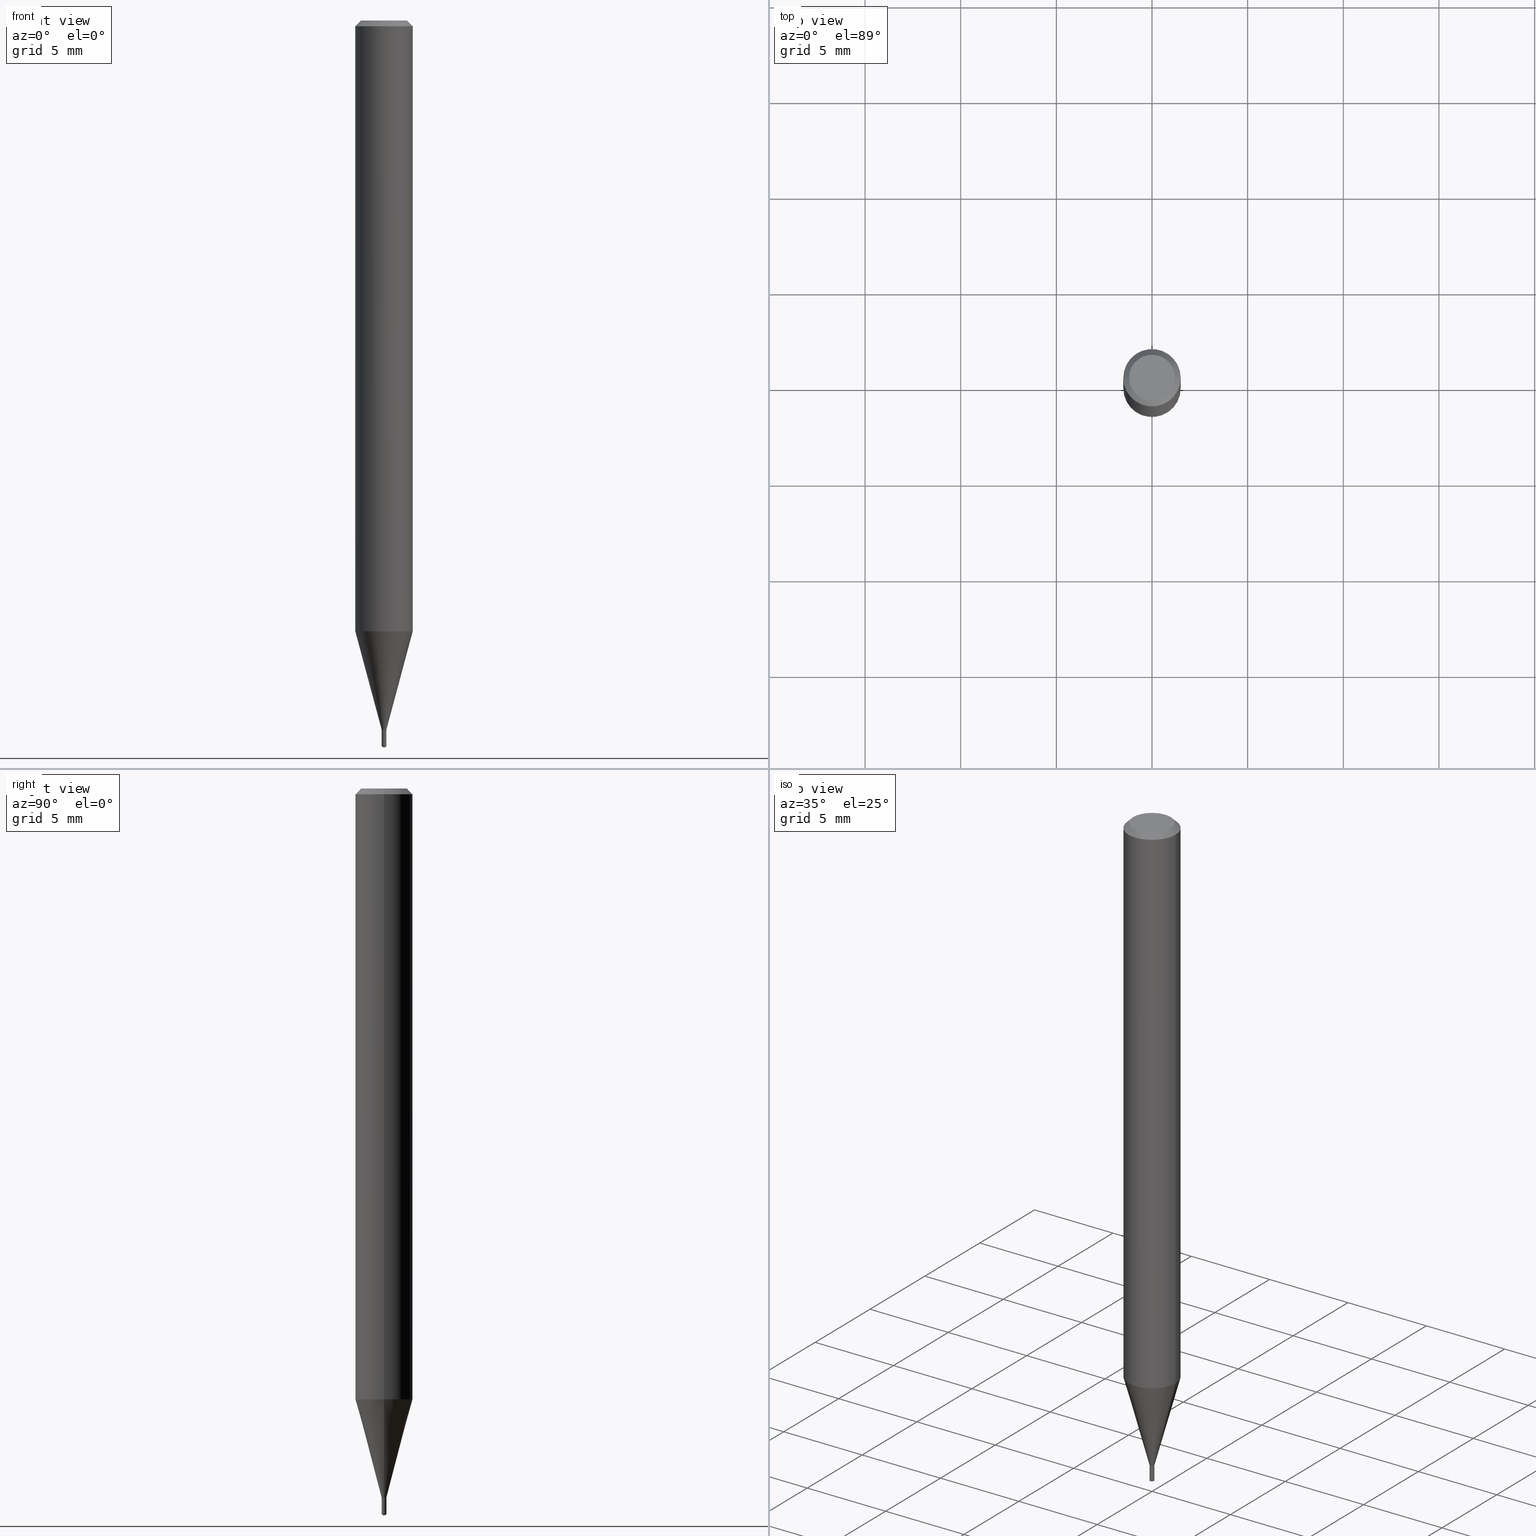
[diagram: canonical four-view strip — front | top / right | iso, engineering-drawing reading convention]
A machine part, canonical four-view strip (front | top / right | iso — engineering-drawing reading convention). The complete STEP part file that produces these views, byte-faithful:
ISO-10303-21;
HEADER;
FILE_DESCRIPTION (( 'STEP AP203' ),
    '1' );
FILE_NAME ('07041.STEP',
    '2024-04-23T19:22:58',
    ( '' ),
    ( '' ),
    'SwSTEP 2.0',
    'SolidWorks 2023',
    '' );
FILE_SCHEMA (( 'CONFIG_CONTROL_DESIGN' ));
ENDSEC;

DATA;
#1 = DIRECTION ( 'NONE',  ( 2.445468806185136597E-29, -3.491481338843145583E-15, -1.000000000000000000 ) ) ;
#2 = CONICAL_SURFACE ( 'NONE', #30, 84.42940631927247352, 1.134464013796307569 ) ;
#3 = LOCAL_TIME ( 15, 22, 58.00000000000000000, #110 ) ;
#4 = CARTESIAN_POINT ( 'NONE',  ( 3.568428081985351240E-29, -5.094769569639917175E-15, -1.459199999999999831 ) ) ;
#5 = APPROVAL ( #480, 'UNSPECIFIED' ) ;
#6 = DIRECTION ( 'NONE',  ( 6.982962677686265922E-15, 1.000000000000000000, -3.402305171297575552E-15 ) ) ;
#7 = ORIENTED_EDGE ( 'NONE', *, *, #74, .F. ) ;
#8 = CYLINDRICAL_SURFACE ( 'NONE', #70, 0.004899999999999998107 ) ;
#9 = ORIENTED_EDGE ( 'NONE', *, *, #350, .F. ) ;
#10 = CIRCLE ( 'NONE', #244, 0.004399999999999999398 ) ;
#11 = DIRECTION ( 'NONE',  ( -6.982962677686267499E-15, -1.000000000000000000, 3.416856291041986202E-15 ) ) ;
#12 = CYLINDRICAL_SURFACE ( 'NONE', #229, 0.004899999999999998107 ) ;
#13 = DIRECTION ( 'NONE',  ( -2.507740191156118144E-29, 3.402305171297575158E-15, 1.000000000000000000 ) ) ;
#14 = EDGE_CURVE ( 'NONE', #232, #302, #92, .T. ) ;
#15 = DIRECTION ( 'NONE',  ( -2.445468806185136597E-29, 3.491481338843145583E-15, 1.000000000000000000 ) ) ;
#16 = AXIS2_PLACEMENT_3D ( 'NONE', #283, #13, #392 ) ;
#17 = CARTESIAN_POINT ( 'NONE',  ( 3.481659405228143594E-17, 0.004899999999994899755, -1.460699999999999887 ) ) ;
#18 = EDGE_LOOP ( 'NONE', ( #446, #120, #429, #259 ) ) ;
#19 = CARTESIAN_POINT ( 'NONE',  ( 3.074221942927981307E-29, -4.389174181264353445E-15, -1.257109448770144855 ) ) ;
#20 = VERTEX_POINT ( 'NONE', #198 ) ;
#21 = EDGE_CURVE ( 'NONE', #394, #481, #343, .T. ) ;
#22 = AXIS2_PLACEMENT_3D ( 'NONE', #79, #231, #41 ) ;
#23 = CARTESIAN_POINT ( 'NONE',  ( 2.888098660104664642E-31, -4.123439461173780879E-17, -0.01181000000000007565 ) ) ;
#24 = PERSON_AND_ORGANIZATION_ROLE ( 'classification_officer' ) ;
#25 = CC_DESIGN_PERSON_AND_ORGANIZATION_ASSIGNMENT ( #403, #360, ( #312 ) ) ;
#26 = DATE_AND_TIME ( #224, #336 ) ;
#27 = ADVANCED_FACE ( 'NONE', ( #214 ), #247, .T. ) ;
#28 = ORIENTED_EDGE ( 'NONE', *, *, #410, .F. ) ;
#29 = COORDINATED_UNIVERSAL_TIME_OFFSET ( 5, 0, .BEHIND. ) ;
#30 = AXIS2_PLACEMENT_3D ( 'NONE', #62, #34, #331 ) ;
#31 = VECTOR ( 'NONE', #387, 39.37007874015748143 ) ;
#32 = EDGE_LOOP ( 'NONE', ( #215, #68 ) ) ;
#33 = APPLICATION_PROTOCOL_DEFINITION ( 'international standard', 'config_control_design', 1994, #388 ) ;
#34 = DIRECTION ( 'NONE',  ( -2.507740191156118144E-29, 3.402305171297575158E-15, 1.000000000000000000 ) ) ;
#35 = DATE_TIME_ROLE ( 'creation_date' ) ;
#36 = CARTESIAN_POINT ( 'NONE',  ( -3.421651712062611296E-17, -0.004900000000005209216, -1.493815092475040407 ) ) ;
#37 = CARTESIAN_POINT ( 'NONE',  ( 3.572096285194628524E-29, -5.100006791648181685E-15, -1.460699999999999887 ) ) ;
#38 = VECTOR ( 'NONE', #389, 39.37007874015748143 ) ;
#39 = CARTESIAN_POINT ( 'NONE',  ( 0.000000000000000000, 0.000000000000000000, 0.000000000000000000 ) ) ;
#40 = ORIENTED_EDGE ( 'NONE', *, *, #350, .T. ) ;
#41 = DIRECTION ( 'NONE',  ( 1.000000000000000000, -6.982962677686196502E-15, 0.000000000000000000 ) ) ;
#42 = ORIENTED_EDGE ( 'NONE', *, *, #57, .T. ) ;
#43 = CC_DESIGN_PERSON_AND_ORGANIZATION_ASSIGNMENT ( #218, #151, ( #219 ) ) ;
#44 = FACE_OUTER_BOUND ( 'NONE', #217, .T. ) ;
#45 = AXIS2_PLACEMENT_3D ( 'NONE', #342, #239, #11 ) ;
#46 =( GEOMETRIC_REPRESENTATION_CONTEXT ( 3 ) GLOBAL_UNCERTAINTY_ASSIGNED_CONTEXT ( ( #250 ) ) GLOBAL_UNIT_ASSIGNED_CONTEXT ( ( #437, #100, #221 ) ) REPRESENTATION_CONTEXT ( 'NONE', 'WORKASPACE' ) );
#47 = CARTESIAN_POINT ( 'NONE',  ( 3.572096285194627963E-29, -5.100006791648181685E-15, -1.460699999999999443 ) ) ;
#48 = DIRECTION ( 'NONE',  ( -2.507740191156118144E-29, 3.402305171297575158E-15, 1.000000000000000000 ) ) ;
#49 = EDGE_CURVE ( 'NONE', #302, #184, #111, .T. ) ;
#50 = CARTESIAN_POINT ( 'NONE',  ( 2.888098660104664642E-31, -4.123439461173780879E-17, -0.01181000000000007565 ) ) ;
#51 = CARTESIAN_POINT ( 'NONE',  ( 3.572096285194627963E-29, -5.100006791648181685E-15, -1.460699999999999443 ) ) ;
#52 = CIRCLE ( 'NONE', #431, 0.004399999999999999398 ) ;
#53 = ORIENTED_EDGE ( 'NONE', *, *, #346, .T. ) ;
#54 = LINE ( 'NONE', #249, #31 ) ;
#55 = DIRECTION ( 'NONE',  ( -1.000000000000000000, 6.982962677686266711E-15, 0.000000000000000000 ) ) ;
#56 = VERTEX_POINT ( 'NONE', #152 ) ;
#57 = EDGE_CURVE ( 'NONE', #150, #184, #178, .T. ) ;
#58 = CARTESIAN_POINT ( 'NONE',  ( 0.004899999999999998107, -5.128986086760580222E-15, -1.459199999999999831 ) ) ;
#59 = DIRECTION ( 'NONE',  ( 0.7071067811868112507, -2.468850131085019257E-15, 0.7071067811862837837 ) ) ;
#60 = ORIENTED_EDGE ( 'NONE', *, *, #119, .F. ) ;
#61 = APPROVAL_PERSON_ORGANIZATION ( #69, #5, #326 ) ;
#62 = CARTESIAN_POINT ( 'NONE',  ( -9.506905849771238472E-28, 1.287285740973184145E-13, 37.87397874015748300 ) ) ;
#63 = EDGE_LOOP ( 'NONE', ( #182, #416, #314, #9 ) ) ;
#64 = CALENDAR_DATE ( 2024, 23, 4 ) ;
#65 = ADVANCED_FACE ( 'NONE', ( #73 ), #173, .F. ) ;
#66 = ORIENTED_EDGE ( 'NONE', *, *, #391, .F. ) ;
#67 = PRODUCT_RELATED_PRODUCT_CATEGORY ( 'detail', '', ( #252 ) ) ;
#68 = ORIENTED_EDGE ( 'NONE', *, *, #188, .F. ) ;
#69 = PERSON_AND_ORGANIZATION ( #87, #113 ) ;
#70 = AXIS2_PLACEMENT_3D ( 'NONE', #39, #199, #195 ) ;
#71 = VECTOR ( 'NONE', #233, 39.37007874015748143 ) ;
#72 = CALENDAR_DATE ( 2024, 23, 4 ) ;
#73 = FACE_OUTER_BOUND ( 'NONE', #148, .T. ) ;
#74 = EDGE_CURVE ( 'NONE', #162, #302, #371, .T. ) ;
#75 = DIRECTION ( 'NONE',  ( 0.2588190451025211836, 1.565188264969622559E-15, 0.9659258262890679791 ) ) ;
#76 = CARTESIAN_POINT ( 'NONE',  ( 3.572096285194628524E-29, -5.100006791648181685E-15, -1.460699999999999887 ) ) ;
#77 = ORIENTED_EDGE ( 'NONE', *, *, #194, .F. ) ;
#78 = AXIS2_PLACEMENT_3D ( 'NONE', #412, #356, #282 ) ;
#79 = CARTESIAN_POINT ( 'NONE',  ( 3.570873550791536843E-29, -5.098261050978760971E-15, -1.460199999999999942 ) ) ;
#80 = DIRECTION ( 'NONE',  ( 1.000000000000000000, -6.982962677686268288E-15, 0.000000000000000000 ) ) ;
#81 = FACE_OUTER_BOUND ( 'NONE', #63, .T. ) ;
#82 = ORIENTED_EDGE ( 'NONE', *, *, #57, .F. ) ;
#83 = FACE_OUTER_BOUND ( 'NONE', #421, .T. ) ;
#84 = VECTOR ( 'NONE', #316, 39.37007874015748854 ) ;
#85 = CONICAL_SURFACE ( 'NONE', #212, 0.004899999999999998107, 0.2617993877991499074 ) ;
#86 = CARTESIAN_POINT ( 'NONE',  ( -0.05905000000000017180, -3.969598695798013952E-15, -1.257109448770144855 ) ) ;
#87 = PERSON ( 'UNSPECIFIED', 'UNSPECIFIED', 'UNSPECIFIED', ('UNSPECIFIED'), ('UNSPECIFIED'), ('UNSPECIFIED') ) ;
#88 = DIRECTION ( 'NONE',  ( 1.000000000000000000, -6.982962677686267499E-15, 4.876176775795936353E-29 ) ) ;
#89 = ADVANCED_FACE ( 'NONE', ( #318 ), #450, .T. ) ;
#90 = FACE_OUTER_BOUND ( 'NONE', #308, .T. ) ;
#91 = ORIENTED_EDGE ( 'NONE', *, *, #153, .T. ) ;
#92 = CIRCLE ( 'NONE', #442, 0.05905000000000017180 ) ;
#93 = CIRCLE ( 'NONE', #443, 0.004899999999999998107 ) ;
#94 = CARTESIAN_POINT ( 'NONE',  ( 4.132873053354867254E-48, -5.900647395337818946E-34, -1.690012582823346072E-19 ) ) ;
#95 = ADVANCED_FACE ( 'NONE', ( #321 ), #452, .T. ) ;
#96 = ORIENTED_EDGE ( 'NONE', *, *, #346, .F. ) ;
#97 = LENGTH_MEASURE_WITH_UNIT ( LENGTH_MEASURE( 0.02539999999999999897 ), #355 );
#98 = LINE ( 'NONE', #413, #483 ) ;
#99 = EDGE_LOOP ( 'NONE', ( #138, #230, #82, #60 ) ) ;
#100 =( NAMED_UNIT ( * ) PLANE_ANGLE_UNIT ( ) SI_UNIT ( $, .RADIAN. ) );
#101 = DIRECTION ( 'NONE',  ( 1.000000000000000000, -6.982962677686289588E-15, 0.000000000000000000 ) ) ;
#102 = ORIENTED_EDGE ( 'NONE', *, *, #440, .F. ) ;
#103 = EDGE_CURVE ( 'NONE', #397, #162, #373, .T. ) ;
#104 = AXIS2_PLACEMENT_3D ( 'NONE', #94, #266, #267 ) ;
#105 = APPROVAL_PERSON_ORGANIZATION ( #488, #377, #332 ) ;
#106 = ORIENTED_EDGE ( 'NONE', *, *, #324, .F. ) ;
#107 = CALENDAR_DATE ( 2024, 23, 4 ) ;
#108 = ORIENTED_EDGE ( 'NONE', *, *, #268, .T. ) ;
#109 = DATE_AND_TIME ( #107, #401 ) ;
#110 = COORDINATED_UNIVERSAL_TIME_OFFSET ( 5, 0, .BEHIND. ) ;
#111 = LINE ( 'NONE', #438, #297 ) ;
#112 = VECTOR ( 'NONE', #303, 39.37007874015748143 ) ;
#113 = ORGANIZATION ( 'UNSPECIFIED', 'UNSPECIFIED', '' ) ;
#114 = ADVANCED_FACE ( 'NONE', ( #393 ), #366, .T. ) ;
#115 = LINE ( 'NONE', #369, #192 ) ;
#116 = LINE ( 'NONE', #158, #328 ) ;
#117 = EDGE_LOOP ( 'NONE', ( #272, #322, #96, #404 ) ) ;
#118 = LINE ( 'NONE', #309, #112 ) ;
#119 = EDGE_CURVE ( 'NONE', #232, #150, #115, .T. ) ;
#120 = ORIENTED_EDGE ( 'NONE', *, *, #386, .T. ) ;
#121 = AXIS2_PLACEMENT_3D ( 'NONE', #37, #301, #6 ) ;
#122 = DIRECTION ( 'NONE',  ( -2.507740191156118144E-29, 3.402305171297575158E-15, 1.000000000000000000 ) ) ;
#123 = VERTEX_POINT ( 'NONE', #36 ) ;
#124 = CARTESIAN_POINT ( 'NONE',  ( 3.751830099988668308E-29, -5.090188766778301737E-15, -1.496099999999999985 ) ) ;
#125 = DIRECTION ( 'NONE',  ( -6.982962677686265922E-15, -1.000000000000000000, 0.000000000000000000 ) ) ;
#126 = ADVANCED_FACE ( 'NONE', ( #333 ), #237, .T. ) ;
#127 = CC_DESIGN_APPROVAL ( #5, ( #312 ) ) ;
#128 = CARTESIAN_POINT ( 'NONE',  ( 0.04724000000000000421, -3.852183633974369345E-16, -3.380025165621689721E-19 ) ) ;
#129 = LINE ( 'NONE', #246, #136 ) ;
#130 = CARTESIAN_POINT ( 'NONE',  ( -0.004399999999999999398, -5.068742911274737565E-15, -1.460699999999999443 ) ) ;
#131 = EDGE_CURVE ( 'NONE', #302, #232, #243, .T. ) ;
#132 = DIRECTION ( 'NONE',  ( 1.000000000000000000, -6.982962677686266711E-15, 0.000000000000000000 ) ) ;
#133 = ORIENTED_EDGE ( 'NONE', *, *, #275, .F. ) ;
#134 = AXIS2_PLACEMENT_3D ( 'NONE', #299, #432, #101 ) ;
#135 = DIRECTION ( 'NONE',  ( 1.000000000000000000, -6.982962677686266711E-15, 0.000000000000000000 ) ) ;
#136 = VECTOR ( 'NONE', #170, 39.37007874015748854 ) ;
#137 = DIRECTION ( 'NONE',  ( 1.000000000000000000, -6.982962677686196502E-15, 0.000000000000000000 ) ) ;
#138 = ORIENTED_EDGE ( 'NONE', *, *, #14, .T. ) ;
#139 = DIRECTION ( 'NONE',  ( 1.000000000000000000, -6.982962677686196502E-15, 0.000000000000000000 ) ) ;
#140 = CARTESIAN_POINT ( 'NONE',  ( -0.004899999999999998107, -5.061698716257093659E-15, -1.459199999999999831 ) ) ;
#141 = EDGE_CURVE ( 'NONE', #397, #232, #98, .T. ) ;
#142 = APPROVAL_DATE_TIME ( #26, #5 ) ;
#143 = VERTEX_POINT ( 'NONE', #477 ) ;
#144 = PERSON_AND_ORGANIZATION ( #87, #113 ) ;
#145 = MANIFOLD_SOLID_BREP ( 'Body-Move/Copy2[2]', #228 ) ;
#146 = AXIS2_PLACEMENT_3D ( 'NONE', #372, #353, #208 ) ;
#147 = CC_DESIGN_APPROVAL ( #223, ( #169 ) ) ;
#148 = EDGE_LOOP ( 'NONE', ( #354, #367 ) ) ;
#149 = PERSON_AND_ORGANIZATION ( #87, #113 ) ;
#150 = VERTEX_POINT ( 'NONE', #396 ) ;
#151 = PERSON_AND_ORGANIZATION_ROLE ( 'creator' ) ;
#152 = CARTESIAN_POINT ( 'NONE',  ( -0.004899999999999998107, -5.061698716257093659E-15, -1.460199999999999942 ) ) ;
#153 = EDGE_CURVE ( 'NONE', #319, #143, #179, .T. ) ;
#154 = DIRECTION ( 'NONE',  ( -6.982962677686265922E-15, -1.000000000000000000, 0.000000000000000000 ) ) ;
#155 = CIRCLE ( 'NONE', #211, 0.004899999999999996372 ) ;
#156 = CIRCLE ( 'NONE', #368, 0.004899999999999998107 ) ;
#157 = CC_DESIGN_PERSON_AND_ORGANIZATION_ASSIGNMENT ( #144, #24, ( #169 ) ) ;
#158 = CARTESIAN_POINT ( 'NONE',  ( 3.753425320352740222E-29, -5.090188766778301737E-15, -1.496099999999999985 ) ) ;
#159 = FACE_OUTER_BOUND ( 'NONE', #117, .T. ) ;
#160 = ORIENTED_EDGE ( 'NONE', *, *, #440, .T. ) ;
#161 = DIRECTION ( 'NONE',  ( -2.445468806185136597E-29, 3.491481338843145583E-15, 1.000000000000000000 ) ) ;
#162 = VERTEX_POINT ( 'NONE', #140 ) ;
#163 = AXIS2_PLACEMENT_3D ( 'NONE', #190, #288, #154 ) ;
#164 = AXIS2_PLACEMENT_3D ( 'NONE', #385, #349, #88 ) ;
#165 = DIRECTION ( 'NONE',  ( 6.439704144417003532E-15, 0.9063077870366484934, 0.4226182617407022724 ) ) ;
#166 = ADVANCED_BREP_SHAPE_REPRESENTATION ( '07041', ( #467, #145, #222 ), #46 ) ;
#167 = DIRECTION ( 'NONE',  ( -6.982962677686265922E-15, -1.000000000000000000, 0.000000000000000000 ) ) ;
#168 = AXIS2_PLACEMENT_3D ( 'NONE', #19, #176, #435 ) ;
#169 = SECURITY_CLASSIFICATION ( '', '', #365 ) ;
#170 = DIRECTION ( 'NONE',  ( -6.328713451373348079E-15, -0.9063077870366456068, 0.4226182617407084896 ) ) ;
#171 = ORIENTED_EDGE ( 'NONE', *, *, #428, .F. ) ;
#172 = FACE_OUTER_BOUND ( 'NONE', #32, .T. ) ;
#173 = PLANE ( 'NONE',  #104 ) ;
#174 = EDGE_LOOP ( 'NONE', ( #262, #359, #402, #439 ) ) ;
#175 = CARTESIAN_POINT ( 'NONE',  ( 6.690138410991351740E-28, 8.559113785256521776E-14, -1.460699999999999443 ) ) ;
#176 = DIRECTION ( 'NONE',  ( -2.445468806185136597E-29, 3.491481338843145583E-15, 1.000000000000000000 ) ) ;
#177 = ORIENTED_EDGE ( 'NONE', *, *, #188, .T. ) ;
#178 = CIRCLE ( 'NONE', #256, 0.05904999999999999832 ) ;
#179 = LINE ( 'NONE', #226, #306 ) ;
#180 = DATE_AND_TIME ( #72, #3 ) ;
#181 = ADVANCED_FACE ( 'NONE', ( #399 ), #2, .T. ) ;
#182 = ORIENTED_EDGE ( 'NONE', *, *, #268, .F. ) ;
#183 = CARTESIAN_POINT ( 'NONE',  ( 0.000000000000000000, 0.000000000000000000, 0.000000000000000000 ) ) ;
#184 = VERTEX_POINT ( 'NONE', #489 ) ;
#185 = APPROVAL_STATUS ( 'not_yet_approved' ) ;
#186 = ORIENTED_EDGE ( 'NONE', *, *, #213, .F. ) ;
#187 = PERSON_AND_ORGANIZATION ( #87, #113 ) ;
#188 = EDGE_CURVE ( 'NONE', #479, #319, #52, .T. ) ;
#189 = DIRECTION ( 'NONE',  ( -2.445468806185136597E-29, 3.491481338843145583E-15, 1.000000000000000000 ) ) ;
#190 = CARTESIAN_POINT ( 'NONE',  ( 3.572096285194628524E-29, -5.100006791648181685E-15, -1.460699999999999887 ) ) ;
#191 = FACE_OUTER_BOUND ( 'NONE', #234, .T. ) ;
#192 = VECTOR ( 'NONE', #255, 39.37007874015748143 ) ;
#193 = CC_DESIGN_SECURITY_CLASSIFICATION ( #169, ( #312 ) ) ;
#194 = EDGE_CURVE ( 'NONE', #341, #286, #116, .T. ) ;
#195 = DIRECTION ( 'NONE',  ( 1.000000000000000000, -6.982962677686265922E-15, 4.876176775795936353E-29 ) ) ;
#196 = ORIENTED_EDGE ( 'NONE', *, *, #275, .T. ) ;
#197 = CYLINDRICAL_SURFACE ( 'NONE', #473, 0.004899999999999998107 ) ;
#198 = CARTESIAN_POINT ( 'NONE',  ( -0.04724000000000000421, 3.504923541997677355E-16, -3.380025165670481712E-19 ) ) ;
#199 = DIRECTION ( 'NONE',  ( -2.445468806185136597E-29, 3.491481338843145583E-15, 1.000000000000000000 ) ) ;
#200 = DIRECTION ( 'NONE',  ( 1.000000000000000000, -6.982962677686196502E-15, 0.000000000000000000 ) ) ;
#201 = ADVANCED_FACE ( 'NONE', ( #83 ), #463, .F. ) ;
#202 = CARTESIAN_POINT ( 'NONE',  ( 3.568428081985351240E-29, -5.094769569639917175E-15, -1.459199999999999831 ) ) ;
#203 = CC_DESIGN_PERSON_AND_ORGANIZATION_ASSIGNMENT ( #482, #398, ( #312 ) ) ;
#204 = DIRECTION ( 'NONE',  ( -2.445468806185136597E-29, 3.491481338843145583E-15, 1.000000000000000000 ) ) ;
#205 = AXIS2_PLACEMENT_3D ( 'NONE', #23, #1, #55 ) ;
#206 = DIRECTION ( 'NONE',  ( -2.438088387897960049E-29, 3.491481338843145188E-15, 1.000000000000000000 ) ) ;
#207 = DIRECTION ( 'NONE',  ( -2.445468806185136597E-29, 3.491481338843145583E-15, 1.000000000000000000 ) ) ;
#208 = DIRECTION ( 'NONE',  ( -6.982962677686265922E-15, -1.000000000000000000, 0.000000000000000000 ) ) ;
#209 = EDGE_LOOP ( 'NONE', ( #253, #177, #91, #485 ) ) ;
#210 = CARTESIAN_POINT ( 'NONE',  ( -0.004899999999999998107, -5.059952975587672945E-15, -1.459199999999999831 ) ) ;
#211 = AXIS2_PLACEMENT_3D ( 'NONE', #338, #456, #167 ) ;
#212 = AXIS2_PLACEMENT_3D ( 'NONE', #202, #15, #430 ) ;
#213 = EDGE_CURVE ( 'NONE', #20, #433, #409, .T. ) ;
#214 = FACE_OUTER_BOUND ( 'NONE', #99, .T. ) ;
#215 = ORIENTED_EDGE ( 'NONE', *, *, #468, .F. ) ;
#216 = DIRECTION ( 'NONE',  ( 0.000000000000000000, 0.000000000000000000, 1.000000000000000000 ) ) ;
#217 = EDGE_LOOP ( 'NONE', ( #53, #108, #248, #106 ) ) ;
#218 = PERSON_AND_ORGANIZATION ( #87, #113 ) ;
#219 = PRODUCT_DEFINITION ( 'UNKNOWN', '', #312, #466 ) ;
#220 = ORIENTED_EDGE ( 'NONE', *, *, #131, .F. ) ;
#221 =( NAMED_UNIT ( * ) SI_UNIT ( $, .STERADIAN. ) SOLID_ANGLE_UNIT ( ) );
#222 = AXIS2_PLACEMENT_3D ( 'NONE', #183, #216, #263 ) ;
#223 = APPROVAL ( #185, 'UNSPECIFIED' ) ;
#224 = CALENDAR_DATE ( 2024, 23, 4 ) ;
#225 = CARTESIAN_POINT ( 'NONE',  ( 3.568428081985351240E-29, -5.094769569639917175E-15, -1.459199999999999831 ) ) ;
#226 = CARTESIAN_POINT ( 'NONE',  ( 0.004399999999999999398, -5.130731827430000937E-15, -1.460699999999999443 ) ) ;
#227 = DIRECTION ( 'NONE',  ( 1.000000000000000000, -6.982962677686266711E-15, 4.876185090822587894E-29 ) ) ;
#228 = CLOSED_SHELL ( 'NONE', ( #261, #89, #27, #415, #235, #241, #370, #361, #126, #65, #478, #114 ) ) ;
#229 = AXIS2_PLACEMENT_3D ( 'NONE', #76, #122, #125 ) ;
#230 = ORIENTED_EDGE ( 'NONE', *, *, #49, .T. ) ;
#231 = DIRECTION ( 'NONE',  ( -2.445468806185136597E-29, 3.491481338843145583E-15, 1.000000000000000000 ) ) ;
#232 = VERTEX_POINT ( 'NONE', #378 ) ;
#233 = DIRECTION ( 'NONE',  ( -0.7071067811865452413, 2.468850131082233000E-15, -0.7071067811865497932 ) ) ;
#234 = EDGE_LOOP ( 'NONE', ( #196, #475, #28, #171 ) ) ;
#235 = ADVANCED_FACE ( 'NONE', ( #44 ), #8, .T. ) ;
#236 = CARTESIAN_POINT ( 'NONE',  ( 3.570873550791536843E-29, -5.098261050978760971E-15, -1.460199999999999942 ) ) ;
#237 = CONICAL_SURFACE ( 'NONE', #205, 0.05904999999999999832, 0.7853981633974450594 ) ;
#238 = AXIS2_PLACEMENT_3D ( 'NONE', #347, #311, #139 ) ;
#239 = DIRECTION ( 'NONE',  ( -2.507740191156118144E-29, 3.402305171297575158E-15, 1.000000000000000000 ) ) ;
#240 = CYLINDRICAL_SURFACE ( 'NONE', #164, 0.05905000000000008159 ) ;
#241 = ADVANCED_FACE ( 'NONE', ( #81 ), #197, .T. ) ;
#242 = CARTESIAN_POINT ( 'NONE',  ( 3.481659405228061010E-17, 0.004899999999994898887, -1.460699999999999887 ) ) ;
#243 = CIRCLE ( 'NONE', #168, 0.05905000000000017180 ) ;
#244 = AXIS2_PLACEMENT_3D ( 'NONE', #51, #207, #464 ) ;
#245 = ORIENTED_EDGE ( 'NONE', *, *, #49, .F. ) ;
#246 = CARTESIAN_POINT ( 'NONE',  ( 3.569910475934442376E-29, -5.350708022645931072E-15, -1.496099999999999985 ) ) ;
#247 = CYLINDRICAL_SURFACE ( 'NONE', #348, 0.05905000000000008159 ) ;
#248 = ORIENTED_EDGE ( 'NONE', *, *, #103, .F. ) ;
#249 = CARTESIAN_POINT ( 'NONE',  ( -3.421651712062696961E-17, -0.004900000000005098194, -1.460699999999999887 ) ) ;
#250 = UNCERTAINTY_MEASURE_WITH_UNIT (LENGTH_MEASURE( 1.000000000000000082E-05 ), #437, 'distance_accuracy_value', 'NONE');
#251 = CARTESIAN_POINT ( 'NONE',  ( 2.888098660104664642E-31, -4.123439461173780879E-17, -0.01181000000000007565 ) ) ;
#252 = PRODUCT ( '07041', '07041', '', ( #362 ) ) ;
#253 = ORIENTED_EDGE ( 'NONE', *, *, #486, .F. ) ;
#254 = ADVANCED_FACE ( 'NONE', ( #423 ), #264, .T. ) ;
#255 = DIRECTION ( 'NONE',  ( -2.445468806185136877E-29, 3.491481338843145188E-15, 1.000000000000000000 ) ) ;
#256 = AXIS2_PLACEMENT_3D ( 'NONE', #251, #284, #132 ) ;
#257 = COORDINATED_UNIVERSAL_TIME_OFFSET ( 5, 0, .BEHIND. ) ;
#258 = CIRCLE ( 'NONE', #411, 0.05904999999999999832 ) ;
#259 = ORIENTED_EDGE ( 'NONE', *, *, #21, .F. ) ;
#260 = DATE_TIME_ROLE ( 'classification_date' ) ;
#261 = ADVANCED_FACE ( 'NONE', ( #159 ), #383, .T. ) ;
#262 = ORIENTED_EDGE ( 'NONE', *, *, #103, .T. ) ;
#263 = DIRECTION ( 'NONE',  ( 1.000000000000000000, 0.000000000000000000, 0.000000000000000000 ) ) ;
#264 = CONICAL_SURFACE ( 'NONE', #45, 84.42940631927247352, 1.134464013796307569 ) ;
#265 = AXIS2_PLACEMENT_3D ( 'NONE', #469, #48, #320 ) ;
#266 = DIRECTION ( 'NONE',  ( 2.438088387897960049E-29, -3.491481338843145188E-15, -1.000000000000000000 ) ) ;
#267 = DIRECTION ( 'NONE',  ( -1.000000000000000000, 6.982962677686265922E-15, -4.876176775795935793E-29 ) ) ;
#268 = EDGE_CURVE ( 'NONE', #56, #162, #118, .T. ) ;
#269 = DIRECTION ( 'NONE',  ( 1.000000000000000000, -6.982962677686265922E-15, 4.876176775795936353E-29 ) ) ;
#270 = ORIENTED_EDGE ( 'NONE', *, *, #21, .T. ) ;
#271 = DIRECTION ( 'NONE',  ( 0.7071067811865452413, -7.319954787623248157E-15, -0.7071067811865497932 ) ) ;
#272 = ORIENTED_EDGE ( 'NONE', *, *, #468, .T. ) ;
#273 = DIRECTION ( 'NONE',  ( -2.445468806185136597E-29, 3.491481338843145583E-15, 1.000000000000000000 ) ) ;
#274 = ORIENTED_EDGE ( 'NONE', *, *, #410, .T. ) ;
#275 = EDGE_CURVE ( 'NONE', #123, #286, #155, .T. ) ;
#276 = CARTESIAN_POINT ( 'NONE',  ( 3.572096285194627963E-29, -5.100006791648181685E-15, -1.460699999999999443 ) ) ;
#277 = DIRECTION ( 'NONE',  ( -2.445468806185136597E-29, 3.491481338843145583E-15, 1.000000000000000000 ) ) ;
#278 = LOCAL_TIME ( 15, 22, 58.00000000000000000, #257 ) ;
#279 = DIRECTION ( 'NONE',  ( 1.000000000000000000, -6.982962677686266711E-15, 4.876185090822587894E-29 ) ) ;
#280 = LINE ( 'NONE', #242, #38 ) ;
#281 = DIRECTION ( 'NONE',  ( -0.7071067811868112507, 7.493145998871307104E-15, 0.7071067811862837837 ) ) ;
#282 = DIRECTION ( 'NONE',  ( -1.000000000000000000, 6.982962677686266711E-15, 0.000000000000000000 ) ) ;
#283 = CARTESIAN_POINT ( 'NONE',  ( 3.572096285194628524E-29, -5.100006791648181685E-15, -1.460699999999999887 ) ) ;
#284 = DIRECTION ( 'NONE',  ( -2.445468806185136597E-29, 3.491481338843145583E-15, 1.000000000000000000 ) ) ;
#285 = EDGE_CURVE ( 'NONE', #433, #150, #305, .T. ) ;
#286 = VERTEX_POINT ( 'NONE', #418 ) ;
#287 = DIRECTION ( 'NONE',  ( -2.445468806185136597E-29, 3.491481338843145583E-15, 1.000000000000000000 ) ) ;
#288 = DIRECTION ( 'NONE',  ( -2.507740191156118144E-29, 3.402305171297575158E-15, 1.000000000000000000 ) ) ;
#289 = APPLICATION_PROTOCOL_DEFINITION ( 'international standard', 'config_control_design', 1994, #406 ) ;
#290 = CLOSED_SHELL ( 'NONE', ( #292, #181, #254, #95, #201 ) ) ;
#291 = APPROVAL_STATUS ( 'not_yet_approved' ) ;
#292 = ADVANCED_FACE ( 'NONE', ( #191 ), #12, .T. ) ;
#293 = ORIENTED_EDGE ( 'NONE', *, *, #334, .T. ) ;
#294 = APPROVAL_ROLE ( '' ) ;
#295 = CARTESIAN_POINT ( 'NONE',  ( 0.000000000000000000, 0.000000000000000000, 0.000000000000000000 ) ) ;
#296 = SHAPE_DEFINITION_REPRESENTATION ( #352, #166 ) ;
#297 = VECTOR ( 'NONE', #474, 39.37007874015748143 ) ;
#298 = CIRCLE ( 'NONE', #16, 0.004899999999999999842 ) ;
#299 = CARTESIAN_POINT ( 'NONE',  ( 3.572096285194627963E-29, -5.100006791648181685E-15, -1.460699999999999443 ) ) ;
#300 = EDGE_CURVE ( 'NONE', #56, #143, #400, .T. ) ;
#301 = DIRECTION ( 'NONE',  ( 2.507740191156117584E-29, -3.402305171297575552E-15, -1.000000000000000000 ) ) ;
#302 = VERTEX_POINT ( 'NONE', #86 ) ;
#303 = DIRECTION ( 'NONE',  ( -2.445468806185136877E-29, 3.491481338843145188E-15, 1.000000000000000000 ) ) ;
#304 = EDGE_LOOP ( 'NONE', ( #66, #455, #42, #472 ) ) ;
#305 = LINE ( 'NONE', #420, #335 ) ;
#306 = VECTOR ( 'NONE', #59, 39.37007874015748143 ) ;
#307 = CC_DESIGN_PERSON_AND_ORGANIZATION_ASSIGNMENT ( #187, #330, ( #252 ) ) ;
#308 = EDGE_LOOP ( 'NONE', ( #7, #40, #436, #220 ) ) ;
#309 = CARTESIAN_POINT ( 'NONE',  ( -0.004899999999999998107, 3.481659405224489566E-17, -2.410278194224902830E-31 ) ) ;
#310 = DIRECTION ( 'NONE',  ( 1.000000000000000000, -6.982962677686289588E-15, 0.000000000000000000 ) ) ;
#311 = DIRECTION ( 'NONE',  ( -2.445468806185136597E-29, 3.491481338843145583E-15, 1.000000000000000000 ) ) ;
#312 = PRODUCT_DEFINITION_FORMATION_WITH_SPECIFIED_SOURCE ( 'ANY', '', #252, .NOT_KNOWN. ) ;
#313 = CARTESIAN_POINT ( 'NONE',  ( 8.265746106709734507E-48, -1.180129479067563789E-33, -3.380025165646692144E-19 ) ) ;
#314 = ORIENTED_EDGE ( 'NONE', *, *, #324, .T. ) ;
#315 = PLANE ( 'NONE',  #358 ) ;
#316 = DIRECTION ( 'NONE',  ( -0.2588190451025211836, 5.211531920934547886E-15, 0.9659258262890679791 ) ) ;
#317 = LINE ( 'NONE', #130, #465 ) ;
#318 = FACE_OUTER_BOUND ( 'NONE', #304, .T. ) ;
#319 = VERTEX_POINT ( 'NONE', #461 ) ;
#320 = DIRECTION ( 'NONE',  ( -6.982962677686265922E-15, -1.000000000000000000, 0.000000000000000000 ) ) ;
#321 = FACE_OUTER_BOUND ( 'NONE', #18, .T. ) ;
#322 = ORIENTED_EDGE ( 'NONE', *, *, #486, .T. ) ;
#323 = DATE_AND_TIME ( #408, #278 ) ;
#324 = EDGE_CURVE ( 'NONE', #143, #397, #422, .T. ) ;
#325 = ORIENTED_EDGE ( 'NONE', *, *, #386, .F. ) ;
#326 = APPROVAL_ROLE ( '' ) ;
#327 = EDGE_LOOP ( 'NONE', ( #102, #339, #133 ) ) ;
#328 = VECTOR ( 'NONE', #165, 39.37007874015748854 ) ;
#329 = ORIENTED_EDGE ( 'NONE', *, *, #131, .T. ) ;
#330 = PERSON_AND_ORGANIZATION_ROLE ( 'design_owner' ) ;
#331 = DIRECTION ( 'NONE',  ( -6.982962677686267499E-15, -1.000000000000000000, 3.416856291041986202E-15 ) ) ;
#332 = APPROVAL_ROLE ( '' ) ;
#333 = FACE_OUTER_BOUND ( 'NONE', #376, .T. ) ;
#334 = EDGE_CURVE ( 'NONE', #20, #184, #337, .T. ) ;
#335 = VECTOR ( 'NONE', #271, 39.37007874015748143 ) ;
#336 = LOCAL_TIME ( 15, 22, 58.00000000000000000, #444 ) ;
#337 = LINE ( 'NONE', #345, #71 ) ;
#338 = CARTESIAN_POINT ( 'NONE',  ( 3.655140333528139392E-29, -5.212674442024010742E-15, -1.493815092475040407 ) ) ;
#339 = ORIENTED_EDGE ( 'NONE', *, *, #194, .T. ) ;
#340 = CARTESIAN_POINT ( 'NONE',  ( 0.004899999999999998107, -3.421651712066269022E-17, 2.389326620140007827E-31 ) ) ;
#341 = VERTEX_POINT ( 'NONE', #124 ) ;
#342 = CARTESIAN_POINT ( 'NONE',  ( -9.506905849771238472E-28, 1.287285740973184145E-13, 37.87397874015748300 ) ) ;
#343 = CIRCLE ( 'NONE', #163, 0.004899999999999999842 ) ;
#344 = CONICAL_SURFACE ( 'NONE', #238, 0.004899999999999998107, 0.2617993877991499074 ) ;
#345 = CARTESIAN_POINT ( 'NONE',  ( -0.05904999999999999832, 3.711095515056362547E-16, -0.01181000000000007565 ) ) ;
#346 = EDGE_CURVE ( 'NONE', #143, #56, #93, .T. ) ;
#347 = CARTESIAN_POINT ( 'NONE',  ( 3.568428081985351240E-29, -5.094769569639917175E-15, -1.459199999999999831 ) ) ;
#348 = AXIS2_PLACEMENT_3D ( 'NONE', #295, #449, #471 ) ;
#349 = DIRECTION ( 'NONE',  ( -2.445468806185136597E-29, 3.491481338843145583E-15, 1.000000000000000000 ) ) ;
#350 = EDGE_CURVE ( 'NONE', #162, #397, #156, .T. ) ;
#351 = CARTESIAN_POINT ( 'NONE',  ( -3.421651712062698194E-17, -0.004900000000005099061, -1.460699999999999887 ) ) ;
#352 = PRODUCT_DEFINITION_SHAPE ( 'NONE', 'NONE',  #219 ) ;
#353 = DIRECTION ( 'NONE',  ( -2.507740191156118144E-29, 3.402305171297575158E-15, 1.000000000000000000 ) ) ;
#354 = ORIENTED_EDGE ( 'NONE', *, *, #213, .T. ) ;
#355 =( LENGTH_UNIT ( ) NAMED_UNIT ( * ) SI_UNIT ( $, .METRE. ) );
#356 = DIRECTION ( 'NONE',  ( 2.445468806185136597E-29, -3.491481338843145583E-15, -1.000000000000000000 ) ) ;
#357 = AXIS2_PLACEMENT_3D ( 'NONE', #47, #161, #310 ) ;
#358 = AXIS2_PLACEMENT_3D ( 'NONE', #175, #206, #470 ) ;
#359 = ORIENTED_EDGE ( 'NONE', *, *, #74, .T. ) ;
#360 = PERSON_AND_ORGANIZATION_ROLE ( 'creator' ) ;
#361 = ADVANCED_FACE ( 'NONE', ( #427 ), #240, .T. ) ;
#362 = MECHANICAL_CONTEXT ( 'NONE', #388, 'mechanical' ) ;
#363 = CC_DESIGN_DATE_AND_TIME_ASSIGNMENT ( #109, #260, ( #169 ) ) ;
#364 = EDGE_LOOP ( 'NONE', ( #77, #160, #325 ) ) ;
#365 = SECURITY_CLASSIFICATION_LEVEL ( 'unclassified' ) ;
#366 = CONICAL_SURFACE ( 'NONE', #134, 0.004399999999999999398, 0.7853981633978213139 ) ;
#367 = ORIENTED_EDGE ( 'NONE', *, *, #391, .T. ) ;
#368 = AXIS2_PLACEMENT_3D ( 'NONE', #4, #204, #395 ) ;
#369 = CARTESIAN_POINT ( 'NONE',  ( 0.05905000000000008159, -4.123439461173746736E-16, 2.879382386107504424E-30 ) ) ;
#370 = ADVANCED_FACE ( 'NONE', ( #90 ), #344, .T. ) ;
#371 = LINE ( 'NONE', #210, #84 ) ;
#372 = CARTESIAN_POINT ( 'NONE',  ( 3.572096285194628524E-29, -5.100006791648181685E-15, -1.460699999999999887 ) ) ;
#373 = CIRCLE ( 'NONE', #390, 0.004899999999999998107 ) ;
#374 = CC_DESIGN_APPROVAL ( #377, ( #219 ) ) ;
#375 = CARTESIAN_POINT ( 'NONE',  ( 8.265746106709734507E-48, -1.180129479067563789E-33, -3.380025165646692144E-19 ) ) ;
#376 = EDGE_LOOP ( 'NONE', ( #487, #186, #293, #379 ) ) ;
#377 = APPROVAL ( #291, 'UNSPECIFIED' ) ;
#378 = CARTESIAN_POINT ( 'NONE',  ( 0.05905000000000017180, -4.801518127381729154E-15, -1.257109448770144855 ) ) ;
#379 = ORIENTED_EDGE ( 'NONE', *, *, #453, .T. ) ;
#380 = DIRECTION ( 'NONE',  ( -2.445468806185136597E-29, 3.491481338843145583E-15, 1.000000000000000000 ) ) ;
#381 = EDGE_LOOP ( 'NONE', ( #245, #329, #460, #407 ) ) ;
#382 = DIRECTION ( 'NONE',  ( -2.445468806185136597E-29, 3.491481338843145583E-15, 1.000000000000000000 ) ) ;
#383 = CONICAL_SURFACE ( 'NONE', #357, 0.004399999999999999398, 0.7853981633978213139 ) ;
#384 = AXIS2_PLACEMENT_3D ( 'NONE', #313, #476, #279 ) ;
#385 = CARTESIAN_POINT ( 'NONE',  ( 0.000000000000000000, 0.000000000000000000, 0.000000000000000000 ) ) ;
#386 = EDGE_CURVE ( 'NONE', #286, #123, #417, .T. ) ;
#387 = DIRECTION ( 'NONE',  ( -2.507740191156117864E-29, 3.402305171297575552E-15, 1.000000000000000000 ) ) ;
#388 = APPLICATION_CONTEXT ( 'configuration controlled 3d designs of mechanical parts and assemblies' ) ;
#389 = DIRECTION ( 'NONE',  ( -2.507740191156117864E-29, 3.402305171297575552E-15, 1.000000000000000000 ) ) ;
#390 = AXIS2_PLACEMENT_3D ( 'NONE', #225, #189, #137 ) ;
#391 = EDGE_CURVE ( 'NONE', #433, #20, #425, .T. ) ;
#392 = DIRECTION ( 'NONE',  ( -6.982962677686265922E-15, -1.000000000000000000, 0.000000000000000000 ) ) ;
#393 = FACE_OUTER_BOUND ( 'NONE', #209, .T. ) ;
#394 = VERTEX_POINT ( 'NONE', #17 ) ;
#395 = DIRECTION ( 'NONE',  ( 1.000000000000000000, -6.982962677686196502E-15, 0.000000000000000000 ) ) ;
#396 = CARTESIAN_POINT ( 'NONE',  ( 0.05904999999999999832, -4.535783407291118600E-16, -0.01181000000000007565 ) ) ;
#397 = VERTEX_POINT ( 'NONE', #58 ) ;
#398 = PERSON_AND_ORGANIZATION_ROLE ( 'design_supplier' ) ;
#399 = FACE_OUTER_BOUND ( 'NONE', #327, .T. ) ;
#400 = CIRCLE ( 'NONE', #22, 0.004899999999999998107 ) ;
#401 = LOCAL_TIME ( 15, 22, 58.00000000000000000, #441 ) ;
#402 = ORIENTED_EDGE ( 'NONE', *, *, #14, .F. ) ;
#403 = PERSON_AND_ORGANIZATION ( #87, #113 ) ;
#404 = ORIENTED_EDGE ( 'NONE', *, *, #153, .F. ) ;
#405 = DATE_AND_TIME ( #64, #458 ) ;
#406 = APPLICATION_CONTEXT ( 'configuration controlled 3d designs of mechanical parts and assemblies' ) ;
#407 = ORIENTED_EDGE ( 'NONE', *, *, #453, .F. ) ;
#408 = CALENDAR_DATE ( 2024, 23, 4 ) ;
#409 = CIRCLE ( 'NONE', #424, 0.04724000000000000421 ) ;
#410 = EDGE_CURVE ( 'NONE', #481, #394, #298, .T. ) ;
#411 = AXIS2_PLACEMENT_3D ( 'NONE', #50, #287, #135 ) ;
#412 = CARTESIAN_POINT ( 'NONE',  ( 2.888098660104664642E-31, -4.123439461173780879E-17, -0.01181000000000007565 ) ) ;
#413 = CARTESIAN_POINT ( 'NONE',  ( 0.004899999999999998107, -5.128986086760580222E-15, -1.459199999999999831 ) ) ;
#414 = CARTESIAN_POINT ( 'NONE',  ( 0.000000000000000000, 0.000000000000000000, 0.000000000000000000 ) ) ;
#415 = ADVANCED_FACE ( 'NONE', ( #426 ), #85, .T. ) ;
#416 = ORIENTED_EDGE ( 'NONE', *, *, #300, .T. ) ;
#417 = CIRCLE ( 'NONE', #265, 0.004899999999999996372 ) ;
#418 = CARTESIAN_POINT ( 'NONE',  ( 3.481659405228143594E-17, 0.004899999999994784396, -1.493815092475040407 ) ) ;
#419 = DIRECTION ( 'NONE',  ( -2.445468806185136597E-29, 3.491481338843145583E-15, 1.000000000000000000 ) ) ;
#420 = CARTESIAN_POINT ( 'NONE',  ( 0.05904999999999999832, -4.463468013801466955E-16, -0.01181000000000007565 ) ) ;
#421 = EDGE_LOOP ( 'NONE', ( #274, #270 ) ) ;
#422 = LINE ( 'NONE', #340, #451 ) ;
#423 = FACE_OUTER_BOUND ( 'NONE', #364, .T. ) ;
#424 = AXIS2_PLACEMENT_3D ( 'NONE', #375, #273, #227 ) ;
#425 = CIRCLE ( 'NONE', #384, 0.04724000000000000421 ) ;
#426 = FACE_OUTER_BOUND ( 'NONE', #174, .T. ) ;
#427 = FACE_OUTER_BOUND ( 'NONE', #381, .T. ) ;
#428 = EDGE_CURVE ( 'NONE', #123, #481, #54, .T. ) ;
#429 = ORIENTED_EDGE ( 'NONE', *, *, #428, .T. ) ;
#430 = DIRECTION ( 'NONE',  ( 1.000000000000000000, -6.982962677686196502E-15, 0.000000000000000000 ) ) ;
#431 = AXIS2_PLACEMENT_3D ( 'NONE', #276, #380, #454 ) ;
#432 = DIRECTION ( 'NONE',  ( -2.445468806185136597E-29, 3.491481338843145583E-15, 1.000000000000000000 ) ) ;
#433 = VERTEX_POINT ( 'NONE', #128 ) ;
#434 = CARTESIAN_POINT ( 'NONE',  ( -0.004399999999999999398, -5.066093684100626364E-15, -1.460699999999999443 ) ) ;
#435 = DIRECTION ( 'NONE',  ( 1.000000000000000000, -6.982962677686268288E-15, 0.000000000000000000 ) ) ;
#436 = ORIENTED_EDGE ( 'NONE', *, *, #141, .T. ) ;
#437 =( CONVERSION_BASED_UNIT ( 'INCH', #97 ) LENGTH_UNIT ( ) NAMED_UNIT ( #445 ) );
#438 = CARTESIAN_POINT ( 'NONE',  ( -0.05905000000000008159, 4.195754854663397395E-16, -2.904631170795525745E-30 ) ) ;
#439 = ORIENTED_EDGE ( 'NONE', *, *, #141, .F. ) ;
#440 = EDGE_CURVE ( 'NONE', #341, #123, #129, .T. ) ;
#441 = COORDINATED_UNIVERSAL_TIME_OFFSET ( 5, 0, .BEHIND. ) ;
#442 = AXIS2_PLACEMENT_3D ( 'NONE', #457, #419, #80 ) ;
#443 = AXIS2_PLACEMENT_3D ( 'NONE', #236, #382, #200 ) ;
#444 = COORDINATED_UNIVERSAL_TIME_OFFSET ( 5, 0, .BEHIND. ) ;
#445 = DIMENSIONAL_EXPONENTS ( 1.000000000000000000, 0.000000000000000000, 0.000000000000000000, 0.000000000000000000, 0.000000000000000000, 0.000000000000000000, 0.000000000000000000 ) ;
#446 = ORIENTED_EDGE ( 'NONE', *, *, #462, .F. ) ;
#447 = CC_DESIGN_DATE_AND_TIME_ASSIGNMENT ( #323, #35, ( #219 ) ) ;
#448 = APPROVAL_DATE_TIME ( #405, #223 ) ;
#449 = DIRECTION ( 'NONE',  ( -2.445468806185136597E-29, 3.491481338843145583E-15, 1.000000000000000000 ) ) ;
#450 = CONICAL_SURFACE ( 'NONE', #78, 0.05904999999999999832, 0.7853981633974450594 ) ;
#451 = VECTOR ( 'NONE', #459, 39.37007874015748143 ) ;
#452 = CYLINDRICAL_SURFACE ( 'NONE', #146, 0.004899999999999998107 ) ;
#453 = EDGE_CURVE ( 'NONE', #184, #150, #258, .T. ) ;
#454 = DIRECTION ( 'NONE',  ( 1.000000000000000000, -6.982962677686289588E-15, 0.000000000000000000 ) ) ;
#455 = ORIENTED_EDGE ( 'NONE', *, *, #285, .T. ) ;
#456 = DIRECTION ( 'NONE',  ( -2.507740191156118144E-29, 3.402305171297575158E-15, 1.000000000000000000 ) ) ;
#457 = CARTESIAN_POINT ( 'NONE',  ( 3.074221942927981307E-29, -4.389174181264353445E-15, -1.257109448770144855 ) ) ;
#458 = LOCAL_TIME ( 15, 22, 58.00000000000000000, #29 ) ;
#459 = DIRECTION ( 'NONE',  ( -2.445468806185136877E-29, 3.491481338843145188E-15, 1.000000000000000000 ) ) ;
#460 = ORIENTED_EDGE ( 'NONE', *, *, #119, .T. ) ;
#461 = CARTESIAN_POINT ( 'NONE',  ( 0.004399999999999999398, -5.130731827430000937E-15, -1.460699999999999443 ) ) ;
#462 = EDGE_CURVE ( 'NONE', #286, #394, #280, .T. ) ;
#463 = PLANE ( 'NONE',  #121 ) ;
#464 = DIRECTION ( 'NONE',  ( 1.000000000000000000, -6.982962677686289588E-15, 0.000000000000000000 ) ) ;
#465 = VECTOR ( 'NONE', #281, 39.37007874015748143 ) ;
#466 = DESIGN_CONTEXT ( 'detailed design', #406, 'design' ) ;
#467 = MANIFOLD_SOLID_BREP ( 'Body-Move/Copy2[1]', #290 ) ;
#468 = EDGE_CURVE ( 'NONE', #319, #479, #10, .T. ) ;
#469 = CARTESIAN_POINT ( 'NONE',  ( 3.655140333528139392E-29, -5.212674442024010742E-15, -1.493815092475040407 ) ) ;
#470 = DIRECTION ( 'NONE',  ( 1.000000000000000000, -6.982962677686265922E-15, 4.876176775795935793E-29 ) ) ;
#471 = DIRECTION ( 'NONE',  ( 1.000000000000000000, -6.982962677686267499E-15, 4.876176775795936353E-29 ) ) ;
#472 = ORIENTED_EDGE ( 'NONE', *, *, #334, .F. ) ;
#473 = AXIS2_PLACEMENT_3D ( 'NONE', #414, #277, #269 ) ;
#474 = DIRECTION ( 'NONE',  ( -2.445468806185136877E-29, 3.491481338843145188E-15, 1.000000000000000000 ) ) ;
#475 = ORIENTED_EDGE ( 'NONE', *, *, #462, .T. ) ;
#476 = DIRECTION ( 'NONE',  ( -2.445468806185136597E-29, 3.491481338843145583E-15, 1.000000000000000000 ) ) ;
#477 = CARTESIAN_POINT ( 'NONE',  ( 0.004899999999999998107, -5.132477568099423229E-15, -1.460199999999999942 ) ) ;
#478 = ADVANCED_FACE ( 'NONE', ( #172 ), #315, .F. ) ;
#479 = VERTEX_POINT ( 'NONE', #434 ) ;
#480 = APPROVAL_STATUS ( 'not_yet_approved' ) ;
#481 = VERTEX_POINT ( 'NONE', #351 ) ;
#482 = PERSON_AND_ORGANIZATION ( #87, #113 ) ;
#483 = VECTOR ( 'NONE', #75, 39.37007874015748854 ) ;
#484 = APPROVAL_PERSON_ORGANIZATION ( #149, #223, #294 ) ;
#485 = ORIENTED_EDGE ( 'NONE', *, *, #300, .F. ) ;
#486 = EDGE_CURVE ( 'NONE', #479, #56, #317, .T. ) ;
#487 = ORIENTED_EDGE ( 'NONE', *, *, #285, .F. ) ;
#488 = PERSON_AND_ORGANIZATION ( #87, #113 ) ;
#489 = CARTESIAN_POINT ( 'NONE',  ( -0.05904999999999999832, -1.795628802471704516E-15, -0.01181000000000007565 ) ) ;
#490 = APPROVAL_DATE_TIME ( #180, #377 ) ;
ENDSEC;
END-ISO-10303-21;
